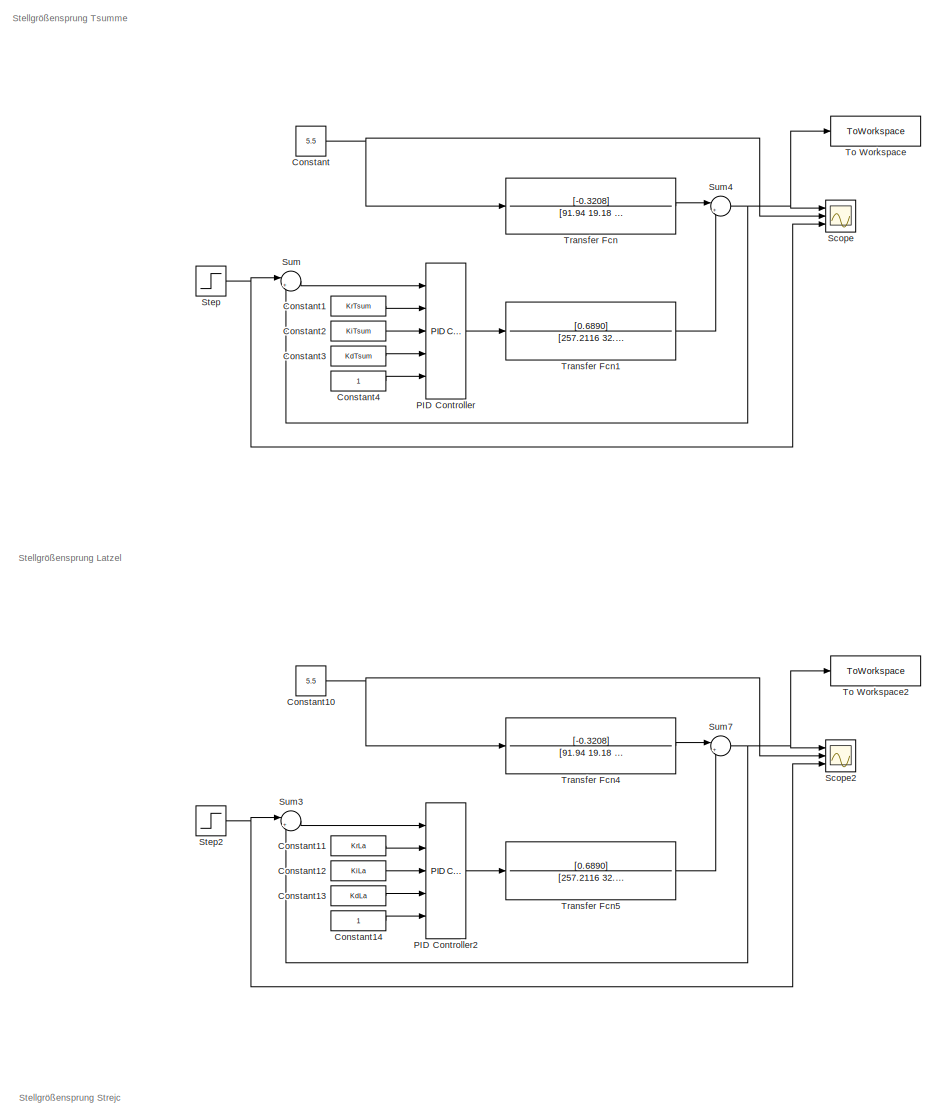
[diagram: root canvas - part 1/4, top left region]
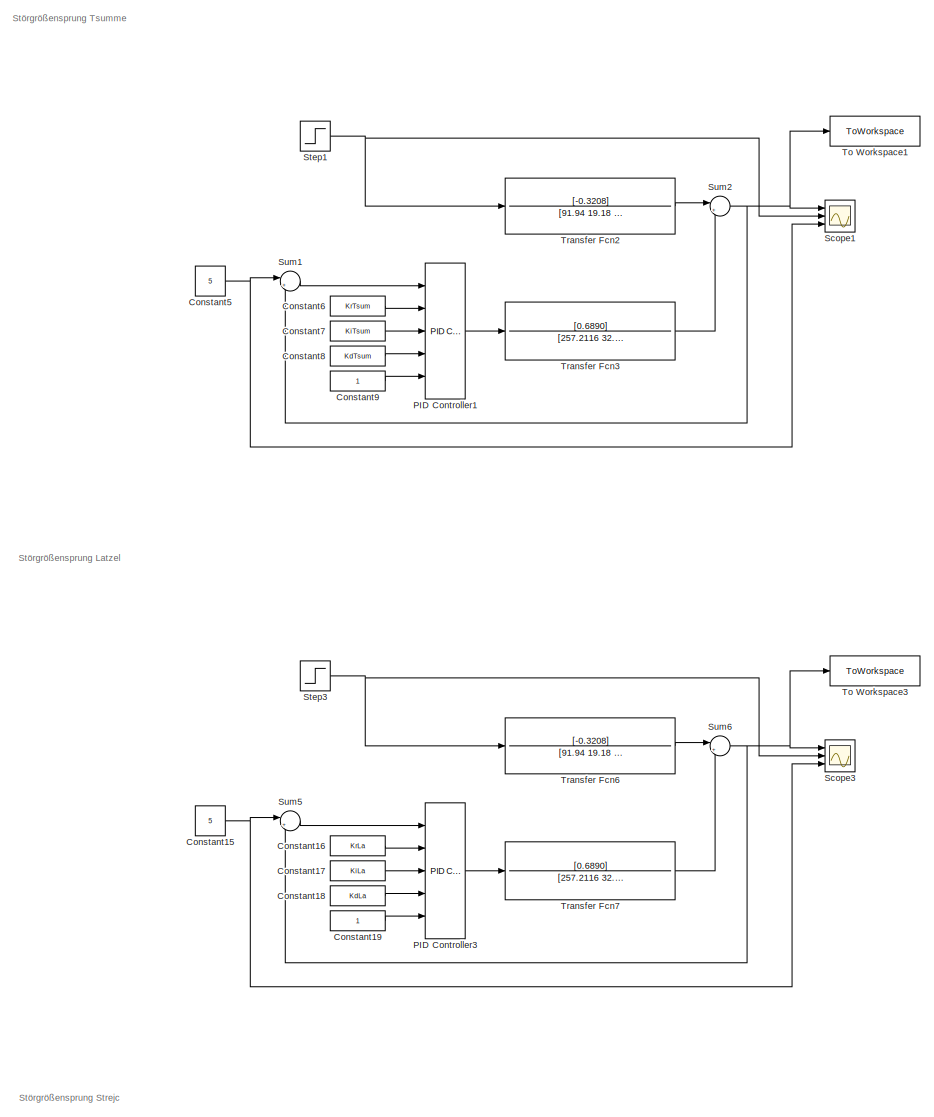
[diagram: root canvas - part 2/4, top right region]
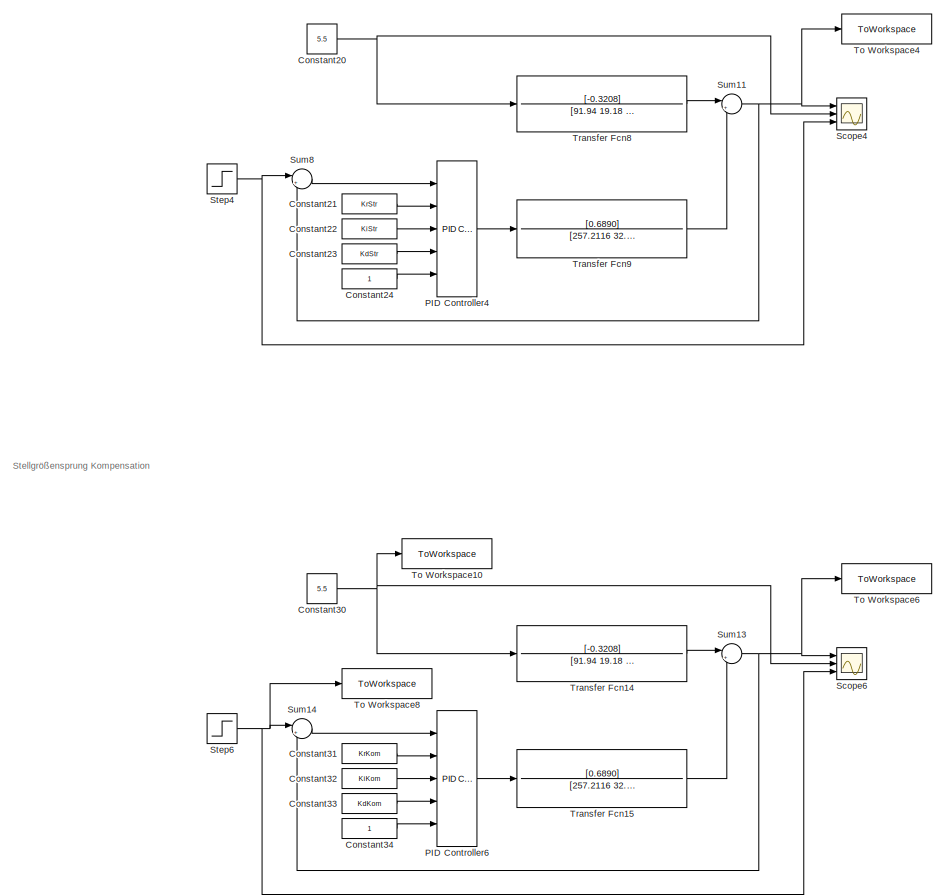
[diagram: root canvas - part 3/4, bottom left region]
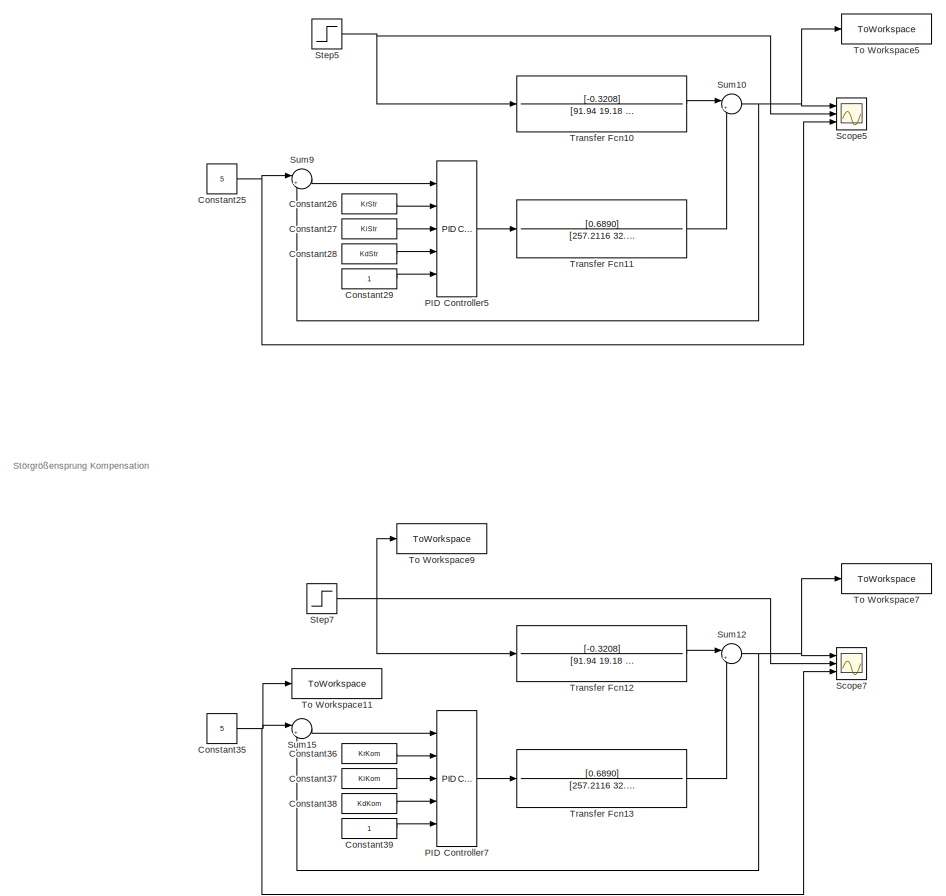
[diagram: root canvas - part 4/4, bottom right region]
MODEL slx_8565c68fb3b3
KIND model
CONFIG AbsTol = auto
CONFIG EnableMultiTasking = off
CONFIG FixedStep = 0.001
CONFIG MaxStep = auto
CONFIG MinStep = auto
CONFIG RelTol = 1e-3
CONFIG SampleTimeConstraint = Unconstrained
CONFIG SolverName = ode1
CONFIG StartTime = 0.0
CONFIG StopTime = 700
BLOCK [Constant] Constant
  Value = 5.5
BLOCK [Constant] Constant1
  Value = KrTsum
BLOCK [Constant] Constant10
  Value = 5.5
BLOCK [Constant] Constant11
  Value = KrLa
BLOCK [Constant] Constant12
  Value = KiLa
BLOCK [Constant] Constant13
  Value = KdLa
BLOCK [Constant] Constant14
BLOCK [Constant] Constant15
  Value = 5
BLOCK [Constant] Constant16
  Value = KrLa
BLOCK [Constant] Constant17
  Value = KiLa
BLOCK [Constant] Constant18
  Value = KdLa
BLOCK [Constant] Constant19
BLOCK [Constant] Constant2
  Value = KiTsum
BLOCK [Constant] Constant20
  Value = 5.5
BLOCK [Constant] Constant21
  Value = KrStr
BLOCK [Constant] Constant22
  Value = KiStr
BLOCK [Constant] Constant23
  Value = KdStr
BLOCK [Constant] Constant24
BLOCK [Constant] Constant25
  Value = 5
BLOCK [Constant] Constant26
  Value = KrStr
BLOCK [Constant] Constant27
  Value = KiStr
BLOCK [Constant] Constant28
  Value = KdStr
BLOCK [Constant] Constant29
BLOCK [Constant] Constant3
  Value = KdTsum
BLOCK [Constant] Constant30
  Value = 5.5
BLOCK [Constant] Constant31
  Value = KrKom
BLOCK [Constant] Constant32
  Value = KiKom
BLOCK [Constant] Constant33
  Value = KdKom
BLOCK [Constant] Constant34
BLOCK [Constant] Constant35
  Value = 5
BLOCK [Constant] Constant36
  Value = KrKom
BLOCK [Constant] Constant37
  Value = KiKom
BLOCK [Constant] Constant38
  Value = KdKom
BLOCK [Constant] Constant39
BLOCK [Constant] Constant4
BLOCK [Constant] Constant5
  Value = 5
BLOCK [Constant] Constant6
  Value = KrTsum
BLOCK [Constant] Constant7
  Value = KiTsum
BLOCK [Constant] Constant8
  Value = KdTsum
BLOCK [Constant] Constant9
BLOCK [Reference] PID Controller  REF=slpidlib/PID Controller
  Ports = [5, 1]
  SourceBlock = slpidlib/PID Controller
  SourceProductBaseCode = SL
  SourceType = PID 1dof
BLOCK [Reference] PID Controller1  REF=slpidlib/PID Controller
  Ports = [5, 1]
  SourceBlock = slpidlib/PID Controller
  SourceProductBaseCode = SL
  SourceType = PID 1dof
BLOCK [Reference] PID Controller2  REF=slpidlib/PID Controller
  Ports = [5, 1]
  SourceBlock = slpidlib/PID Controller
  SourceProductBaseCode = SL
  SourceType = PID 1dof
BLOCK [Reference] PID Controller3  REF=slpidlib/PID Controller
  Ports = [5, 1]
  SourceBlock = slpidlib/PID Controller
  SourceProductBaseCode = SL
  SourceType = PID 1dof
BLOCK [Reference] PID Controller4  REF=slpidlib/PID Controller
  Ports = [5, 1]
  SourceBlock = slpidlib/PID Controller
  SourceProductBaseCode = SL
  SourceType = PID 1dof
BLOCK [Reference] PID Controller5  REF=slpidlib/PID Controller
  Ports = [5, 1]
  SourceBlock = slpidlib/PID Controller
  SourceProductBaseCode = SL
  SourceType = PID 1dof
BLOCK [Reference] PID Controller6  REF=slpidlib/PID Controller
  Ports = [5, 1]
  SourceBlock = slpidlib/PID Controller
  SourceProductBaseCode = SL
  SourceType = PID 1dof
BLOCK [Reference] PID Controller7  REF=slpidlib/PID Controller
  Ports = [5, 1]
  SourceBlock = slpidlib/PID Controller
  SourceProductBaseCode = SL
  SourceType = PID 1dof
BLOCK [Scope] Scope
  Floating = off
  NumInputPorts = 3
  Ports = [3]
  ScopeSpecificationString = Simulink.scopes.TimeScopeBlockCfg('CurrentConfiguration', extmgr.ConfigurationSet(extmgr.Configuration('Core','General UI',true),extmgr.Configuration('Core','Source UI',true),extmgr.Configuration('Sources','WiredSimulink',true,'DataLoggingSaveFormat','StructureWithTime','DataLoggingDecimation','1','DataLoggingDecimateData',true),extmgr.Configuration('Visuals','Time Domain',true,'SerializedDisplays...<+1655ch>
BLOCK [Scope] Scope1
  Floating = off
  NumInputPorts = 3
  Ports = [3]
  ScopeSpecificationString = Simulink.scopes.TimeScopeBlockCfg('CurrentConfiguration', extmgr.ConfigurationSet(extmgr.Configuration('Core','General UI',true),extmgr.Configuration('Core','Source UI',true),extmgr.Configuration('Sources','WiredSimulink',true,'DataLoggingSaveFormat','StructureWithTime','DataLoggingDecimation','1','DataLoggingDecimateData',true,'DataLoggingVariableName','ScopeData1'),extmgr.Configuration('Visuals'...<+1661ch>
BLOCK [Scope] Scope2
  Floating = off
  NumInputPorts = 3
  Ports = [3]
  ScopeSpecificationString = Simulink.scopes.TimeScopeBlockCfg('CurrentConfiguration', extmgr.ConfigurationSet(extmgr.Configuration('Core','General UI',true),extmgr.Configuration('Core','Source UI',true),extmgr.Configuration('Sources','WiredSimulink',true,'DataLoggingSaveFormat','StructureWithTime','DataLoggingDecimation','1','DataLoggingDecimateData',true,'DataLoggingVariableName','ScopeData2'),extmgr.Configuration('Visuals'...<+1728ch>
BLOCK [Scope] Scope3
  Floating = off
  NumInputPorts = 3
  Ports = [3]
  ScopeSpecificationString = Simulink.scopes.TimeScopeBlockCfg('CurrentConfiguration', extmgr.ConfigurationSet(extmgr.Configuration('Core','General UI',true),extmgr.Configuration('Core','Source UI',true),extmgr.Configuration('Sources','WiredSimulink',true,'DataLoggingSaveFormat','StructureWithTime','DataLoggingDecimation','1','DataLoggingDecimateData',true,'DataLoggingVariableName','ScopeData3'),extmgr.Configuration('Visuals'...<+1662ch>
BLOCK [Scope] Scope4
  Floating = off
  NumInputPorts = 3
  Ports = [3]
  ScopeSpecificationString = Simulink.scopes.TimeScopeBlockCfg('CurrentConfiguration', extmgr.ConfigurationSet(extmgr.Configuration('Core','General UI',true),extmgr.Configuration('Core','Source UI',true),extmgr.Configuration('Sources','WiredSimulink',true,'DataLoggingSaveFormat','StructureWithTime','DataLoggingDecimation','1','DataLoggingDecimateData',true,'DataLoggingVariableName','ScopeData4'),extmgr.Configuration('Visuals'...<+1729ch>
BLOCK [Scope] Scope5
  Floating = off
  NumInputPorts = 3
  Ports = [3]
  ScopeSpecificationString = Simulink.scopes.TimeScopeBlockCfg('CurrentConfiguration', extmgr.ConfigurationSet(extmgr.Configuration('Core','General UI',true),extmgr.Configuration('Core','Source UI',true),extmgr.Configuration('Sources','WiredSimulink',true,'DataLoggingSaveFormat','StructureWithTime','DataLoggingDecimation','1','DataLoggingDecimateData',true,'DataLoggingVariableName','ScopeData5'),extmgr.Configuration('Visuals'...<+1662ch>
BLOCK [Scope] Scope6
  Floating = off
  NumInputPorts = 3
  Ports = [3]
  ScopeSpecificationString = Simulink.scopes.TimeScopeBlockCfg('CurrentConfiguration', extmgr.ConfigurationSet(extmgr.Configuration('Core','General UI',true),extmgr.Configuration('Core','Source UI',true),extmgr.Configuration('Sources','WiredSimulink',true,'DataLoggingSaveFormat','StructureWithTime','DataLoggingDecimation','1','DataLoggingDecimateData',true,'DataLoggingVariableName','ScopeData6'),extmgr.Configuration('Visuals'...<+1745ch>
BLOCK [Scope] Scope7
  Floating = off
  NumInputPorts = 3
  Ports = [3]
  ScopeSpecificationString = Simulink.scopes.TimeScopeBlockCfg('CurrentConfiguration', extmgr.ConfigurationSet(extmgr.Configuration('Core','General UI',true),extmgr.Configuration('Core','Source UI',true),extmgr.Configuration('Sources','WiredSimulink',true,'DataLoggingSaveFormat','StructureWithTime','DataLoggingDecimation','1','DataLoggingDecimateData',true,'DataLoggingVariableName','ScopeData7'),extmgr.Configuration('Visuals'...<+1658ch>
BLOCK [Step] Step
  After = 6
  AttributesFormatString = initial value=%<Before>\nfinal value=%<After>\nstep time=%<Time>
  Before = 4
  SampleTime = 0
  Time = 400
BLOCK [Step] Step1
  After = 7
  AttributesFormatString = initial value=%<Before>\nfinal value=%<After>\nstep time=%<Time>
  Before = 5.5
  SampleTime = 0
  Time = 400
BLOCK [Step] Step2
  After = 6
  AttributesFormatString = initial value=%<Before>\nfinal value=%<After>\nstep time=%<Time>
  Before = 4
  SampleTime = 0
  Time = 400
BLOCK [Step] Step3
  After = 7
  AttributesFormatString = initial value=%<Before>\nfinal value=%<After>\nstep time=%<Time>
  Before = 5.5
  SampleTime = 0
  Time = 400
BLOCK [Step] Step4
  After = 6
  AttributesFormatString = initial value=%<Before>\nfinal value=%<After>\nstep time=%<Time>
  Before = 4
  SampleTime = 0
  Time = 400
BLOCK [Step] Step5
  After = 7
  AttributesFormatString = initial value=%<Before>\nfinal value=%<After>\nstep time=%<Time>
  Before = 5.5
  SampleTime = 0
  Time = 400
BLOCK [Step] Step6
  After = 6
  AttributesFormatString = initial value=%<Before>\nfinal value=%<After>\nstep time=%<Time>
  Before = 4
  SampleTime = 0
  Time = 400
BLOCK [Step] Step7
  After = 7
  AttributesFormatString = initial value=%<Before>\nfinal value=%<After>\nstep time=%<Time>
  Before = 5.5
  SampleTime = 0
  Time = 400
BLOCK [Sum] Sum
  Inputs = |+-
  Ports = [2, 1]
BLOCK [Sum] Sum1
  Inputs = |+-
  Ports = [2, 1]
BLOCK [Sum] Sum10
  Inputs = |++
  NameLocation = top
  Ports = [2, 1]
BLOCK [Sum] Sum11
  Inputs = |++
  NameLocation = top
  Ports = [2, 1]
BLOCK [Sum] Sum12
  Inputs = |++
  NameLocation = top
  Ports = [2, 1]
BLOCK [Sum] Sum13
  Inputs = |++
  NameLocation = top
  Ports = [2, 1]
BLOCK [Sum] Sum14
  Inputs = |+-
  Ports = [2, 1]
BLOCK [Sum] Sum15
  Inputs = |+-
  Ports = [2, 1]
BLOCK [Sum] Sum2
  Inputs = |++
  NameLocation = top
  Ports = [2, 1]
BLOCK [Sum] Sum3
  Inputs = |+-
  Ports = [2, 1]
BLOCK [Sum] Sum4
  Inputs = |++
  NameLocation = top
  Ports = [2, 1]
BLOCK [Sum] Sum5
  Inputs = |+-
  Ports = [2, 1]
BLOCK [Sum] Sum6
  Inputs = |++
  NameLocation = top
  Ports = [2, 1]
BLOCK [Sum] Sum7
  Inputs = |++
  NameLocation = top
  Ports = [2, 1]
BLOCK [Sum] Sum8
  Inputs = |+-
  Ports = [2, 1]
BLOCK [Sum] Sum9
  Inputs = |+-
  Ports = [2, 1]
BLOCK [ToWorkspace] To Workspace
  FixptAsFi = on
  MaxDataPoints = inf
  Ports = [1]
  SampleTime = -1
  VariableName = PIDSwaTsumYRes
BLOCK [ToWorkspace] To Workspace1
  FixptAsFi = on
  MaxDataPoints = inf
  Ports = [1]
  SampleTime = -1
  VariableName = PIDSwaTsumZRes1
BLOCK [ToWorkspace] To Workspace10
  FixptAsFi = on
  MaxDataPoints = inf
  Ports = [1]
  SampleTime = -1
  VariableName = StoergrY
BLOCK [ToWorkspace] To Workspace11
  FixptAsFi = on
  MaxDataPoints = inf
  Ports = [1]
  SampleTime = -1
  VariableName = StellgrZ
BLOCK [ToWorkspace] To Workspace2
  FixptAsFi = on
  MaxDataPoints = inf
  Ports = [1]
  SampleTime = -1
  VariableName = PIDSwaLaYRes1
BLOCK [ToWorkspace] To Workspace3
  FixptAsFi = on
  MaxDataPoints = inf
  Ports = [1]
  SampleTime = -1
  VariableName = PIDSwaLaZRes
BLOCK [ToWorkspace] To Workspace4
  FixptAsFi = on
  MaxDataPoints = inf
  Ports = [1]
  SampleTime = -1
  VariableName = PIDSwaStrYRes
BLOCK [ToWorkspace] To Workspace5
  FixptAsFi = on
  MaxDataPoints = inf
  Ports = [1]
  SampleTime = -1
  VariableName = PIDSwaStrZRes1
BLOCK [ToWorkspace] To Workspace6
  FixptAsFi = on
  MaxDataPoints = inf
  Ports = [1]
  SampleTime = -1
  VariableName = PIDSwaKomYRes1
BLOCK [ToWorkspace] To Workspace7
  FixptAsFi = on
  MaxDataPoints = inf
  Ports = [1]
  SampleTime = -1
  VariableName = PIDSwaKomZRes
BLOCK [ToWorkspace] To Workspace8
  FixptAsFi = on
  MaxDataPoints = inf
  Ports = [1]
  SampleTime = -1
  VariableName = StellgrY
BLOCK [ToWorkspace] To Workspace9
  FixptAsFi = on
  MaxDataPoints = inf
  Ports = [1]
  SampleTime = -1
  VariableName = StoergrZ
BLOCK [TransferFcn] Transfer Fcn
  Denominator = [91.94 19.18 1]
  Numerator = [-0.3208]
BLOCK [TransferFcn] Transfer Fcn1
  Denominator = [257.2116 32.0756 1]
  Numerator = [0.6890]
BLOCK [TransferFcn] Transfer Fcn10
  Denominator = [91.94 19.18 1]
  Numerator = [-0.3208]
BLOCK [TransferFcn] Transfer Fcn11
  Denominator = [257.2116 32.0756 1]
  Numerator = [0.6890]
BLOCK [TransferFcn] Transfer Fcn12
  Denominator = [91.94 19.18 1]
  Numerator = [-0.3208]
BLOCK [TransferFcn] Transfer Fcn13
  Denominator = [257.2116 32.0756 1]
  Numerator = [0.6890]
BLOCK [TransferFcn] Transfer Fcn14
  Denominator = [91.94 19.18 1]
  Numerator = [-0.3208]
BLOCK [TransferFcn] Transfer Fcn15
  Denominator = [257.2116 32.0756 1]
  Numerator = [0.6890]
BLOCK [TransferFcn] Transfer Fcn2
  Denominator = [91.94 19.18 1]
  Numerator = [-0.3208]
BLOCK [TransferFcn] Transfer Fcn3
  Denominator = [257.2116 32.0756 1]
  Numerator = [0.6890]
BLOCK [TransferFcn] Transfer Fcn4
  Denominator = [91.94 19.18 1]
  Numerator = [-0.3208]
BLOCK [TransferFcn] Transfer Fcn5
  Denominator = [257.2116 32.0756 1]
  Numerator = [0.6890]
BLOCK [TransferFcn] Transfer Fcn6
  Denominator = [91.94 19.18 1]
  Numerator = [-0.3208]
BLOCK [TransferFcn] Transfer Fcn7
  Denominator = [257.2116 32.0756 1]
  Numerator = [0.6890]
BLOCK [TransferFcn] Transfer Fcn8
  Denominator = [91.94 19.18 1]
  Numerator = [-0.3208]
BLOCK [TransferFcn] Transfer Fcn9
  Denominator = [257.2116 32.0756 1]
  Numerator = [0.6890]
ANNOTATION (root): Stellgrößensprung Kompensation
ANNOTATION (root): Stellgrößensprung Latzel
ANNOTATION (root): Stellgrößensprung Strejc
ANNOTATION (root): Stellgrößensprung Tsumme
ANNOTATION (root): Störgrößensprung Kompensation
ANNOTATION (root): Störgrößensprung Latzel
ANNOTATION (root): Störgrößensprung Strejc
ANNOTATION (root): Störgrößensprung Tsumme
NET Constant10:1 -> Scope2:2, Transfer Fcn4:1
LINE Constant11:1 -> PID Controller2:2
LINE Constant12:1 -> PID Controller2:3
LINE Constant13:1 -> PID Controller2:4
LINE Constant14:1 -> PID Controller2:5
NET Constant15:1 -> Scope3:3, Sum5:1
LINE Constant16:1 -> PID Controller3:2
LINE Constant17:1 -> PID Controller3:3
LINE Constant18:1 -> PID Controller3:4
LINE Constant19:1 -> PID Controller3:5
LINE Constant1:1 -> PID Controller:2
NET Constant20:1 -> Scope4:2, Transfer Fcn8:1
LINE Constant21:1 -> PID Controller4:2
LINE Constant22:1 -> PID Controller4:3
LINE Constant23:1 -> PID Controller4:4
LINE Constant24:1 -> PID Controller4:5
NET Constant25:1 -> Scope5:3, Sum9:1
LINE Constant26:1 -> PID Controller5:2
LINE Constant27:1 -> PID Controller5:3
LINE Constant28:1 -> PID Controller5:4
LINE Constant29:1 -> PID Controller5:5
LINE Constant2:1 -> PID Controller:3
NET Constant30:1 -> Scope6:2, To Workspace10:1, Transfer Fcn14:1
LINE Constant31:1 -> PID Controller6:2
LINE Constant32:1 -> PID Controller6:3
LINE Constant33:1 -> PID Controller6:4
LINE Constant34:1 -> PID Controller6:5
NET Constant35:1 -> Scope7:3, Sum15:1, To Workspace11:1
LINE Constant36:1 -> PID Controller7:2
LINE Constant37:1 -> PID Controller7:3
LINE Constant38:1 -> PID Controller7:4
LINE Constant39:1 -> PID Controller7:5
LINE Constant3:1 -> PID Controller:4
LINE Constant4:1 -> PID Controller:5
NET Constant5:1 -> Scope1:3, Sum1:1
LINE Constant6:1 -> PID Controller1:2
LINE Constant7:1 -> PID Controller1:3
LINE Constant8:1 -> PID Controller1:4
LINE Constant9:1 -> PID Controller1:5
NET Constant:1 -> Scope:2, Transfer Fcn:1
LINE PID Controller1:1 -> Transfer Fcn3:1
LINE PID Controller2:1 -> Transfer Fcn5:1
LINE PID Controller3:1 -> Transfer Fcn7:1
LINE PID Controller4:1 -> Transfer Fcn9:1
LINE PID Controller5:1 -> Transfer Fcn11:1
LINE PID Controller6:1 -> Transfer Fcn15:1
LINE PID Controller7:1 -> Transfer Fcn13:1
LINE PID Controller:1 -> Transfer Fcn1:1
NET Step1:1 -> Scope1:2, Transfer Fcn2:1
NET Step2:1 -> Scope2:3, Sum3:1
NET Step3:1 -> Scope3:2, Transfer Fcn6:1
NET Step4:1 -> Scope4:3, Sum8:1
NET Step5:1 -> Scope5:2, Transfer Fcn10:1
NET Step6:1 -> Scope6:3, Sum14:1, To Workspace8:1
NET Step7:1 -> Scope7:2, To Workspace9:1, Transfer Fcn12:1
NET Step:1 -> Scope:3, Sum:1
NET Sum10:1 -> Scope5:1, Sum9:2, To Workspace5:1
NET Sum11:1 -> Scope4:1, Sum8:2, To Workspace4:1
NET Sum12:1 -> Scope7:1, Sum15:2, To Workspace7:1
NET Sum13:1 -> Scope6:1, Sum14:2, To Workspace6:1
LINE Sum14:1 -> PID Controller6:1
LINE Sum15:1 -> PID Controller7:1
LINE Sum1:1 -> PID Controller1:1
NET Sum2:1 -> Scope1:1, Sum1:2, To Workspace1:1
LINE Sum3:1 -> PID Controller2:1
NET Sum4:1 -> Scope:1, Sum:2, To Workspace:1
LINE Sum5:1 -> PID Controller3:1
NET Sum6:1 -> Scope3:1, Sum5:2, To Workspace3:1
NET Sum7:1 -> Scope2:1, Sum3:2, To Workspace2:1
LINE Sum8:1 -> PID Controller4:1
LINE Sum9:1 -> PID Controller5:1
LINE Sum:1 -> PID Controller:1
LINE Transfer Fcn10:1 -> Sum10:1
LINE Transfer Fcn11:1 -> Sum10:2
LINE Transfer Fcn12:1 -> Sum12:1
LINE Transfer Fcn13:1 -> Sum12:2
LINE Transfer Fcn14:1 -> Sum13:1
LINE Transfer Fcn15:1 -> Sum13:2
LINE Transfer Fcn1:1 -> Sum4:2
LINE Transfer Fcn2:1 -> Sum2:1
LINE Transfer Fcn3:1 -> Sum2:2
LINE Transfer Fcn4:1 -> Sum7:1
LINE Transfer Fcn5:1 -> Sum7:2
LINE Transfer Fcn6:1 -> Sum6:1
LINE Transfer Fcn7:1 -> Sum6:2
LINE Transfer Fcn8:1 -> Sum11:1
LINE Transfer Fcn9:1 -> Sum11:2
LINE Transfer Fcn:1 -> Sum4:1
note: NET lines group one-source signal fan-out (src -> all destinations, sorted); 1:1 wires keep LINE
